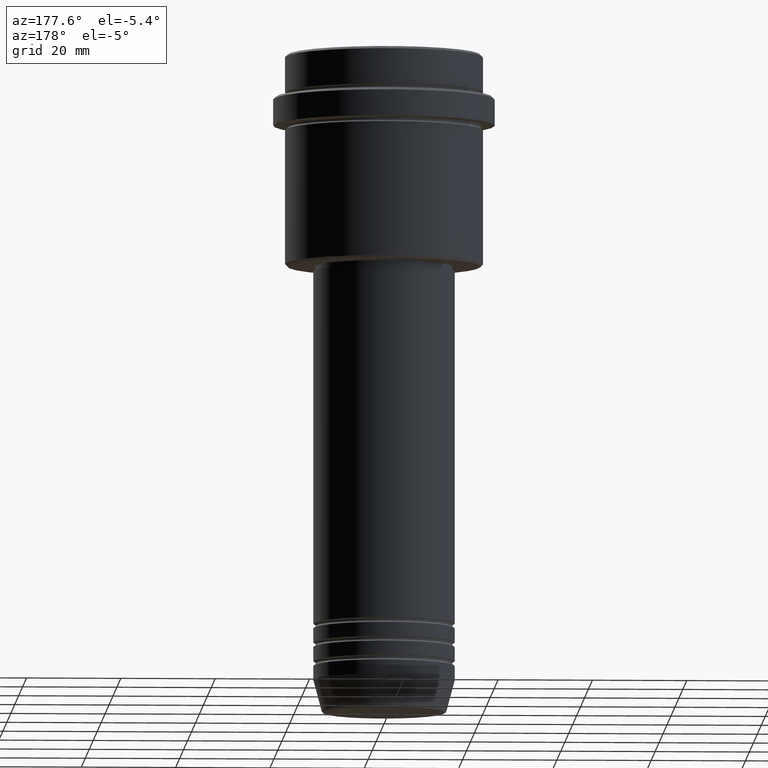
[diagram: clean part render]
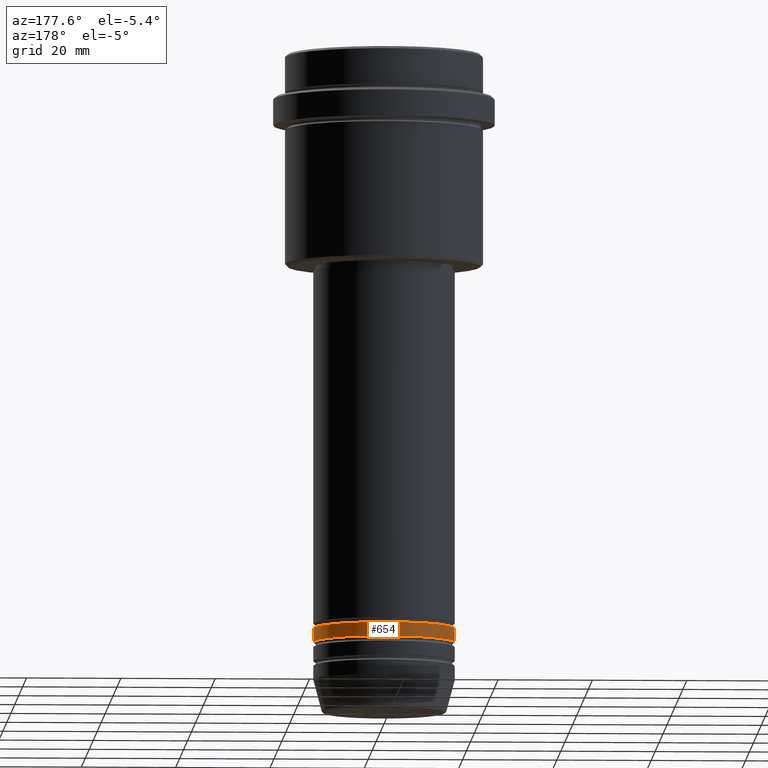
[diagram: same view with one face highlighted and labeled with its STEP entity id]
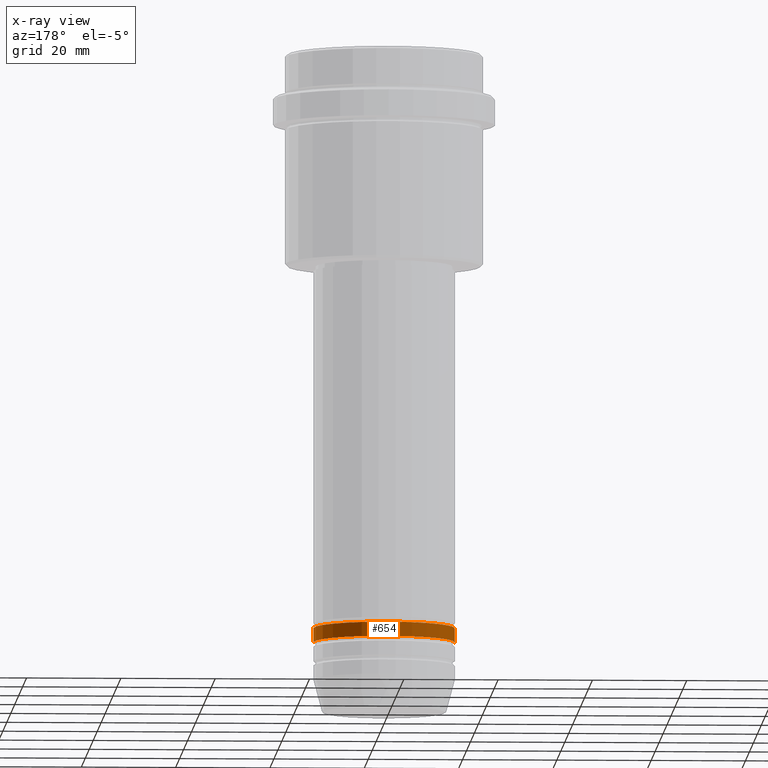
[diagram: x-ray of the same camera — body ghosted, the highlighted face saturated]
A machine part, auxiliary view. The second image highlights one B-rep face of the part: STEP entity #654.
The next image is the same camera in x-ray: the body ghosted, the highlighted face saturated — about 0% of this face is hidden behind the body in this view.
In plain terms, the highlighted cylindrical surface (partial cylindrical patch) has radius 15 mm, axis along (-0, -0, 1).
Its self-contained STEP definition (entity closure, byte-faithful):
#32 = DIRECTION ( 'NONE',  ( 1.000000000000000000, 0.000000000000000000, 0.000000000000000000 ) ) ;
#45 = VECTOR ( 'NONE', #1079, 1000.000000000000000 ) ;
#78 = EDGE_CURVE ( 'NONE', #640, #618, #792, .T. ) ;
#83 = ORIENTED_EDGE ( 'NONE', *, *, #686, .F. ) ;
#152 = AXIS2_PLACEMENT_3D ( 'NONE', #1356, #900, #32 ) ;
#188 = CARTESIAN_POINT ( 'NONE',  ( -15.00000000000000000, 1.836970198721029589E-15, -124.9999999999999005 ) ) ;
#305 = CYLINDRICAL_SURFACE ( 'NONE', #983, 15.00000000000000000 ) ;
#306 = LINE ( 'NONE', #1317, #1007 ) ;
#317 = DIRECTION ( 'NONE',  ( 1.000000000000000000, 0.000000000000000000, 0.000000000000000000 ) ) ;
#365 = VERTEX_POINT ( 'NONE', #767 ) ;
#385 = EDGE_CURVE ( 'NONE', #640, #578, #306, .T. ) ;
#390 = FACE_OUTER_BOUND ( 'NONE', #396, .T. ) ;
#396 = EDGE_LOOP ( 'NONE', ( #648, #1179, #83, #708 ) ) ;
#510 = DIRECTION ( 'NONE',  ( -0.000000000000000000, -0.000000000000000000, 1.000000000000000000 ) ) ;
#578 = VERTEX_POINT ( 'NONE', #596 ) ;
#596 = CARTESIAN_POINT ( 'NONE',  ( 15.00000000000000000, 0.000000000000000000, -121.9999999999999005 ) ) ;
#618 = VERTEX_POINT ( 'NONE', #188 ) ;
#636 = CARTESIAN_POINT ( 'NONE',  ( 0.000000000000000000, 0.000000000000000000, 0.000000000000000000 ) ) ;
#640 = VERTEX_POINT ( 'NONE', #851 ) ;
#648 = ORIENTED_EDGE ( 'NONE', *, *, #78, .T. ) ;
#654 = ADVANCED_FACE ( 'NONE', ( #390 ), #305, .T. ) ;
#686 = EDGE_CURVE ( 'NONE', #578, #365, #1326, .T. ) ;
#708 = ORIENTED_EDGE ( 'NONE', *, *, #385, .F. ) ;
#712 = LINE ( 'NONE', #831, #45 ) ;
#730 = DIRECTION ( 'NONE',  ( 1.000000000000000000, 0.000000000000000000, 0.000000000000000000 ) ) ;
#737 = DIRECTION ( 'NONE',  ( -0.000000000000000000, -0.000000000000000000, 1.000000000000000000 ) ) ;
#767 = CARTESIAN_POINT ( 'NONE',  ( -15.00000000000000000, 1.836970198721029589E-15, -121.9999999999999005 ) ) ;
#792 = CIRCLE ( 'NONE', #152, 15.00000000000000000 ) ;
#831 = CARTESIAN_POINT ( 'NONE',  ( -15.00000000000000000, 1.836970198721029589E-15, 0.000000000000000000 ) ) ;
#851 = CARTESIAN_POINT ( 'NONE',  ( 15.00000000000000000, 0.000000000000000000, -124.9999999999999005 ) ) ;
#900 = DIRECTION ( 'NONE',  ( -0.000000000000000000, -0.000000000000000000, 1.000000000000000000 ) ) ;
#956 = CARTESIAN_POINT ( 'NONE',  ( 0.000000000000000000, 0.000000000000000000, -121.9999999999999005 ) ) ;
#983 = AXIS2_PLACEMENT_3D ( 'NONE', #636, #510, #730 ) ;
#1007 = VECTOR ( 'NONE', #1306, 1000.000000000000000 ) ;
#1079 = DIRECTION ( 'NONE',  ( -0.000000000000000000, -0.000000000000000000, 1.000000000000000000 ) ) ;
#1144 = AXIS2_PLACEMENT_3D ( 'NONE', #956, #737, #317 ) ;
#1146 = EDGE_CURVE ( 'NONE', #618, #365, #712, .T. ) ;
#1179 = ORIENTED_EDGE ( 'NONE', *, *, #1146, .T. ) ;
#1306 = DIRECTION ( 'NONE',  ( -0.000000000000000000, -0.000000000000000000, 1.000000000000000000 ) ) ;
#1317 = CARTESIAN_POINT ( 'NONE',  ( 15.00000000000000000, 0.000000000000000000, 0.000000000000000000 ) ) ;
#1326 = CIRCLE ( 'NONE', #1144, 15.00000000000000000 ) ;
#1356 = CARTESIAN_POINT ( 'NONE',  ( 0.000000000000000000, 0.000000000000000000, -124.9999999999999005 ) ) ;